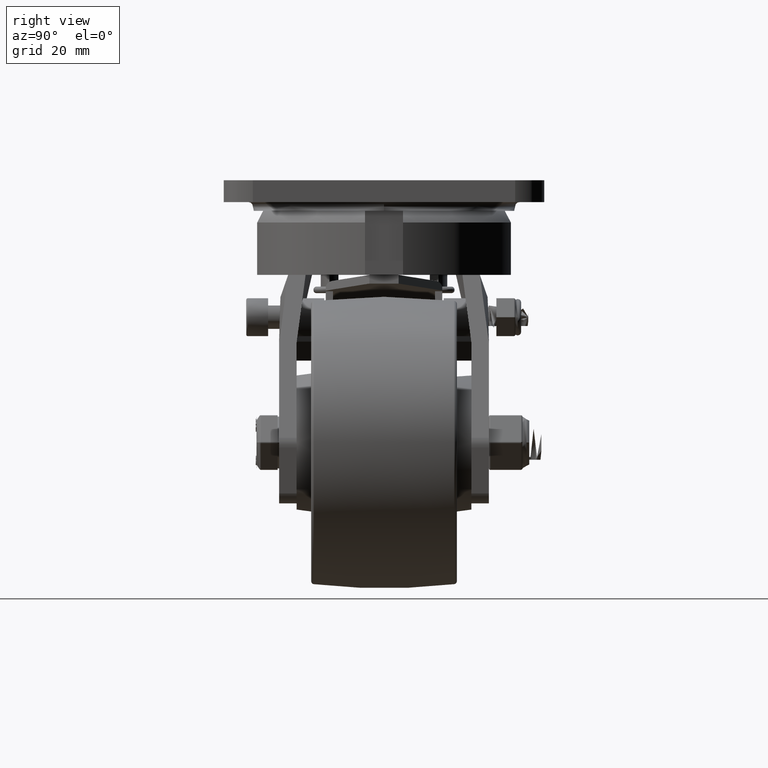
[diagram: clean part render]
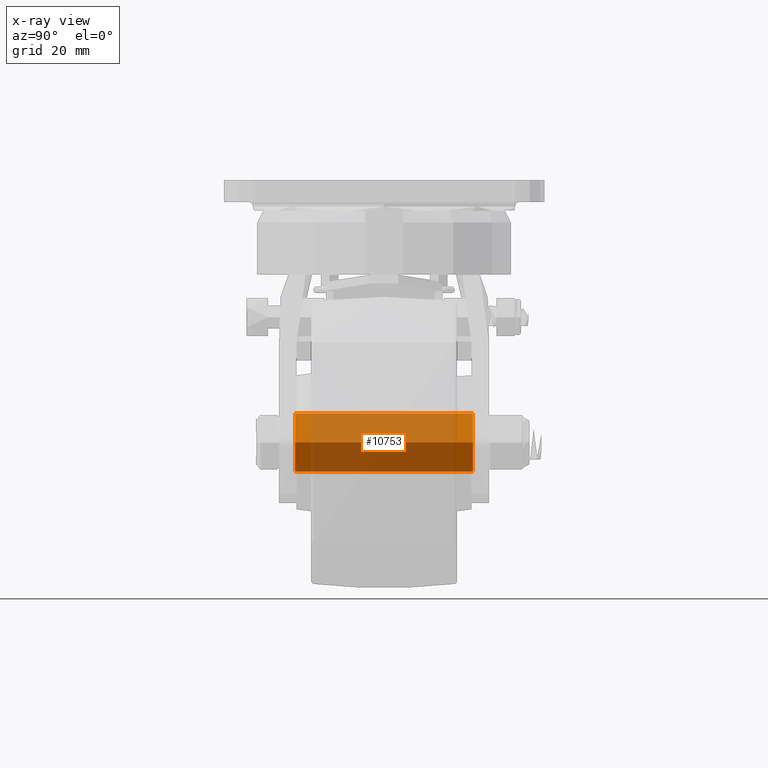
[diagram: x-ray — body ghosted, one internal face saturated and labeled with its STEP entity id]
A machine part, right view, then the same camera in x-ray: the body is ghosted and one INTERNAL B-rep face — a face not visible from any outside direction — is saturated and labeled: STEP entity #10753.
In plain terms, the highlighted cylindrical surface (bore or boss wall) has radius 9.95 mm, axis along (0, -1, -0).
Its self-contained STEP definition (entity closure, byte-faithful):
#874=CYLINDRICAL_SURFACE('',#12011,9.95);
#1690=FACE_OUTER_BOUND('',#2408,.T.);
#2408=EDGE_LOOP('',(#9307,#9308,#9309,#9310));
#3193=LINE('',#29293,#3991);
#3991=VECTOR('',#14458,9.95);
#4565=CIRCLE('',#12012,9.95);
#4566=CIRCLE('',#12013,9.95);
#5373=VERTEX_POINT('',#29290);
#5374=VERTEX_POINT('',#29292);
#6729=EDGE_CURVE('',#5373,#5373,#4565,.T.);
#6730=EDGE_CURVE('',#5373,#5374,#3193,.T.);
#6731=EDGE_CURVE('',#5374,#5374,#4566,.T.);
#9307=ORIENTED_EDGE('',*,*,#6729,.T.);
#9308=ORIENTED_EDGE('',*,*,#6730,.T.);
#9309=ORIENTED_EDGE('',*,*,#6731,.T.);
#9310=ORIENTED_EDGE('',*,*,#6730,.F.);
#10753=ADVANCED_FACE('',(#1690),#874,.T.);
#12011=AXIS2_PLACEMENT_3D('',#29289,#14454,#14455);
#12012=AXIS2_PLACEMENT_3D('',#29291,#14456,#14457);
#12013=AXIS2_PLACEMENT_3D('',#29294,#14459,#14460);
#14454=DIRECTION('center_axis',(0.,-1.,-3.49148336110938E-15));
#14455=DIRECTION('ref_axis',(1.,0.,0.));
#14456=DIRECTION('center_axis',(0.,1.,3.49148336110938E-15));
#14457=DIRECTION('ref_axis',(1.,0.,0.));
#14458=DIRECTION('',(0.,1.,3.49148336110938E-15));
#14459=DIRECTION('center_axis',(0.,-1.,-3.49148336110938E-15));
#14460=DIRECTION('ref_axis',(1.,0.,0.));
#29289=CARTESIAN_POINT('Origin',(0.,0.,0.));
#29290=CARTESIAN_POINT('',(-9.95,-30.5,-1.05271718948685E-13));
#29291=CARTESIAN_POINT('Origin',(0.,-30.5,-1.06490242513836E-13));
#29292=CARTESIAN_POINT('',(-9.95,30.5,1.07708766078988E-13));
#29293=CARTESIAN_POINT('',(-9.95,4.25445475284655E-30,-1.21852356515162E-15));
#29294=CARTESIAN_POINT('Origin',(0.,30.5,1.06490242513836E-13));